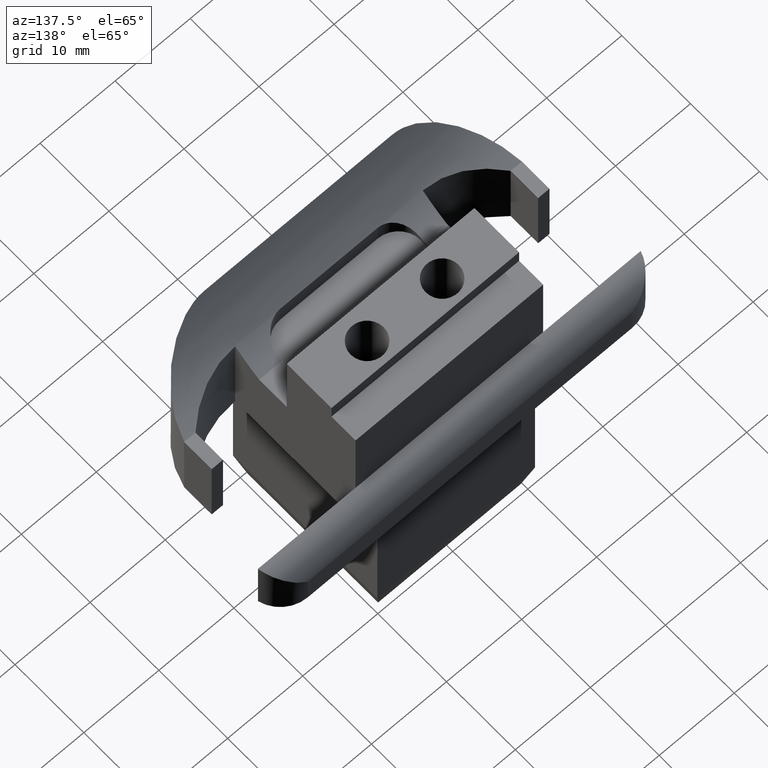
[diagram: clean part render]
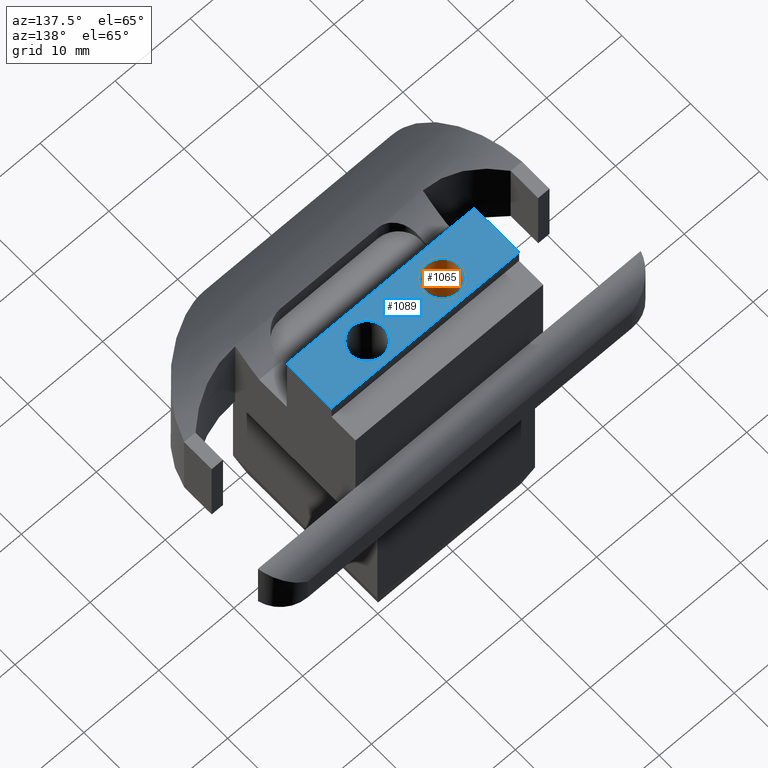
[diagram: same view with the hole feature highlighted: cylindrical wall and planar end face, labeled with their STEP entity ids]
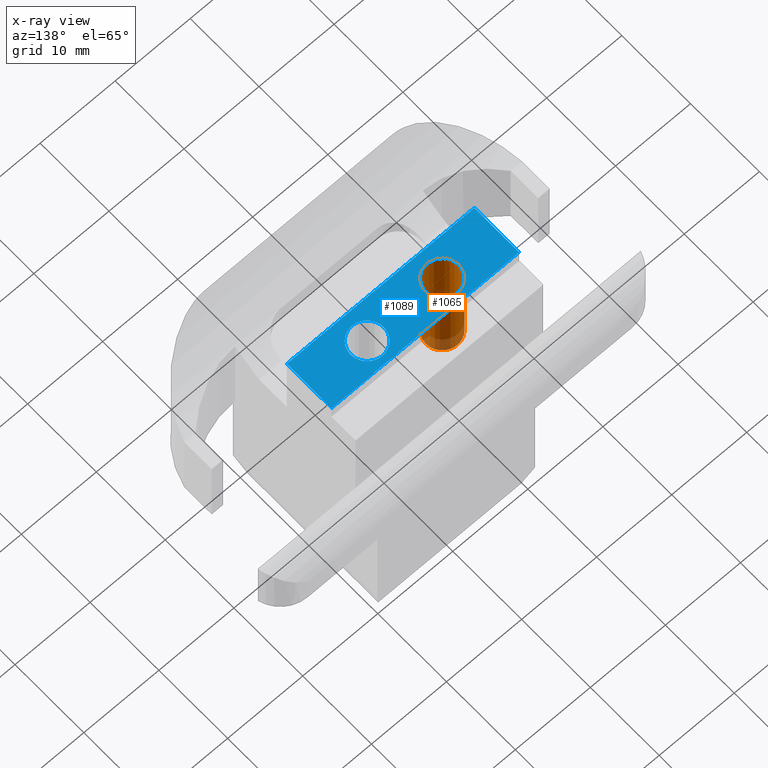
[diagram: x-ray of the same camera — body ghosted, the hole faces saturated]
A machine part, auxiliary view. The highlighted faces form one hole feature of diameter 4.4 mm: the cylindrical wall (entity #1065, orange) and its adjacent planar end face (entity #1089, blue) — they share a circular edge in the B-rep.
The next image is the same camera in x-ray (body ghosted, the hole faces saturated) — the bore reads through the body.
Wall:
#26=CYLINDRICAL_SURFACE('',#1133,2.2);
#45=FACE_BOUND('',#157,.T.);
#55=CIRCLE('',#1125,2.2);
#56=CIRCLE('',#1134,2.2);
#93=FACE_OUTER_BOUND('',#156,.T.);
#156=EDGE_LOOP('',(#780));
#157=EDGE_LOOP('',(#781));
#473=VERTEX_POINT('',#1574);
#474=VERTEX_POINT('',#1590);
#582=EDGE_CURVE('',#473,#473,#55,.T.);
#589=EDGE_CURVE('',#474,#474,#56,.T.);
#780=ORIENTED_EDGE('',*,*,#582,.T.);
#781=ORIENTED_EDGE('',*,*,#589,.F.);
#1065=ADVANCED_FACE('',(#93,#45),#26,.F.);
#1125=AXIS2_PLACEMENT_3D('',#1575,#1263,#1264);
#1133=AXIS2_PLACEMENT_3D('',#1589,#1285,#1286);
#1134=AXIS2_PLACEMENT_3D('',#1591,#1287,#1288);
#1263=DIRECTION('center_axis',(0.,0.,-1.));
#1264=DIRECTION('ref_axis',(1.,0.,0.));
#1285=DIRECTION('center_axis',(0.,0.,1.));
#1286=DIRECTION('ref_axis',(1.,0.,0.));
#1287=DIRECTION('center_axis',(0.,0.,-1.));
#1288=DIRECTION('ref_axis',(1.,0.,0.));
#1574=CARTESIAN_POINT('',(-7.2,3.,20.25));
#1575=CARTESIAN_POINT('Origin',(-5.,3.,20.25));
#1589=CARTESIAN_POINT('Origin',(-5.,3.,-39.5986771439163));
#1590=CARTESIAN_POINT('',(-2.8,3.,32.25));
#1591=CARTESIAN_POINT('Origin',(-5.,3.,32.25));
End face:
#47=FACE_BOUND('',#183,.T.);
#48=FACE_BOUND('',#184,.T.);
#56=CIRCLE('',#1134,2.2);
#57=CIRCLE('',#1136,2.2);
#117=FACE_OUTER_BOUND('',#182,.T.);
#182=EDGE_LOOP('',(#898,#899,#900,#901));
#183=EDGE_LOOP('',(#902));
#184=EDGE_LOOP('',(#903));
#265=LINE('',#1680,#385);
#283=LINE('',#1728,#403);
#292=LINE('',#1749,#412);
#294=LINE('',#1752,#414);
#385=VECTOR('',#1353,25.);
#403=VECTOR('',#1399,6.5);
#412=VECTOR('',#1416,6.5);
#414=VECTOR('',#1420,25.);
#474=VERTEX_POINT('',#1590);
#475=VERTEX_POINT('',#1593);
#498=VERTEX_POINT('',#1677);
#499=VERTEX_POINT('',#1679);
#515=VERTEX_POINT('',#1726);
#523=VERTEX_POINT('',#1748);
#589=EDGE_CURVE('',#474,#474,#56,.T.);
#590=EDGE_CURVE('',#475,#475,#57,.T.);
#623=EDGE_CURVE('',#499,#498,#265,.T.);
#647=EDGE_CURVE('',#498,#515,#283,.T.);
#658=EDGE_CURVE('',#523,#499,#292,.T.);
#660=EDGE_CURVE('',#515,#523,#294,.T.);
#898=ORIENTED_EDGE('',*,*,#623,.T.);
#899=ORIENTED_EDGE('',*,*,#647,.T.);
#900=ORIENTED_EDGE('',*,*,#660,.T.);
#901=ORIENTED_EDGE('',*,*,#658,.T.);
#902=ORIENTED_EDGE('',*,*,#589,.T.);
#903=ORIENTED_EDGE('',*,*,#590,.T.);
#1034=PLANE('',#1175);
#1089=ADVANCED_FACE('',(#117,#47,#48),#1034,.T.);
#1134=AXIS2_PLACEMENT_3D('',#1591,#1287,#1288);
#1136=AXIS2_PLACEMENT_3D('',#1594,#1291,#1292);
#1175=AXIS2_PLACEMENT_3D('',#1753,#1421,#1422);
#1287=DIRECTION('center_axis',(0.,0.,-1.));
#1288=DIRECTION('ref_axis',(1.,0.,0.));
#1291=DIRECTION('center_axis',(0.,0.,-1.));
#1292=DIRECTION('ref_axis',(1.,0.,0.));
#1353=DIRECTION('',(1.,-4.44089209850063E-17,0.));
#1399=DIRECTION('',(0.,1.,0.));
#1416=DIRECTION('',(0.,-1.,0.));
#1420=DIRECTION('',(-1.,-8.88178419700125E-17,0.));
#1421=DIRECTION('center_axis',(0.,0.,1.));
#1422=DIRECTION('ref_axis',(1.,0.,0.));
#1590=CARTESIAN_POINT('',(-2.8,3.,32.25));
#1591=CARTESIAN_POINT('Origin',(-5.,3.,32.25));
#1593=CARTESIAN_POINT('',(7.2,3.,32.25));
#1594=CARTESIAN_POINT('Origin',(5.,3.,32.25));
#1677=CARTESIAN_POINT('',(12.5,-0.499999999999999,32.25));
#1679=CARTESIAN_POINT('',(-12.5,-0.499999999999998,32.25));
#1680=CARTESIAN_POINT('',(-12.5,-0.499999999999998,32.25));
#1726=CARTESIAN_POINT('',(12.5,6.,32.25));
#1728=CARTESIAN_POINT('',(12.5,-0.499999999999999,32.25));
#1748=CARTESIAN_POINT('',(-12.5,6.,32.25));
#1749=CARTESIAN_POINT('',(-12.5,12.5,32.25));
#1752=CARTESIAN_POINT('',(12.5,6.,32.25));
#1753=CARTESIAN_POINT('Origin',(7.93016446160826E-16,2.75,32.25));